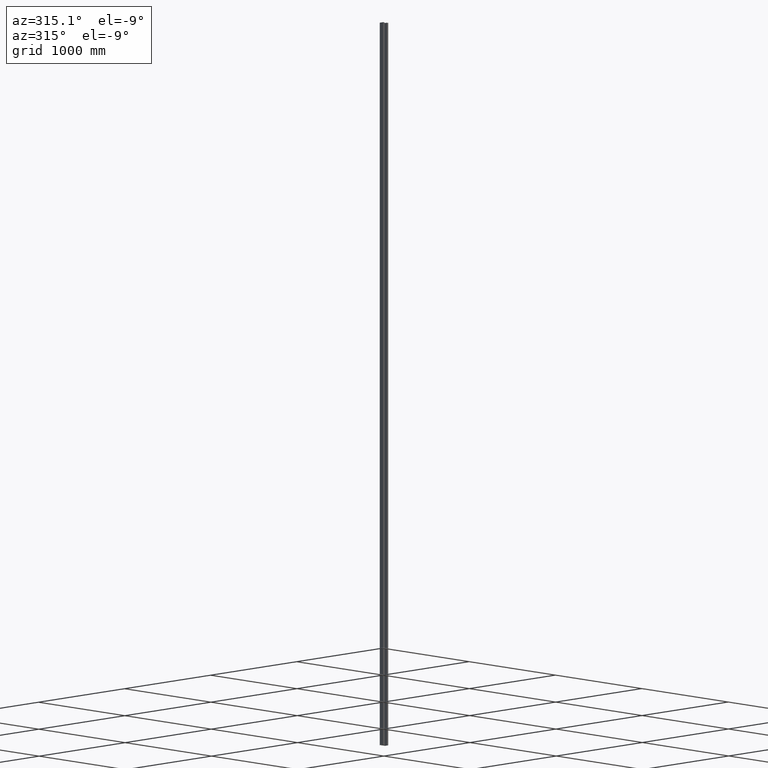
[diagram: clean part render]
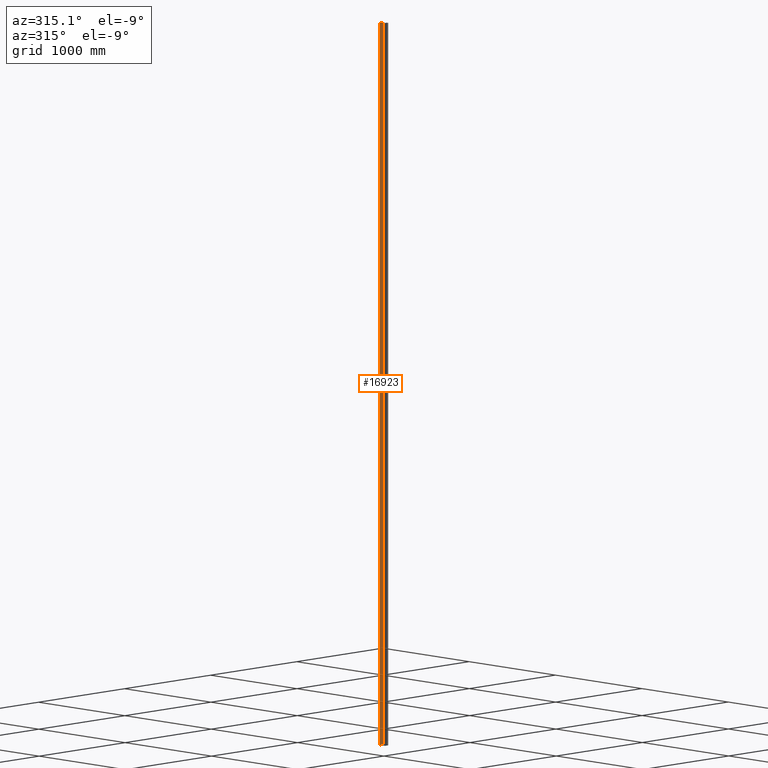
[diagram: same view with one face highlighted and labeled with its STEP entity id]
A machine part, auxiliary view. The second image highlights one B-rep face of the part: STEP entity #16923.
In plain terms, the highlighted planar face has unit normal (1, 0, -0).
Its self-contained STEP definition (entity closure, byte-faithful):
#56 = CARTESIAN_POINT ( 'NONE',  ( -30.00000000000000711, 17.99999999999999645, 3000.000000000000000 ) ) ;
#277 = DIRECTION ( 'NONE',  ( 9.637352644315595243E-17, -1.000000000000000000, 0.000000000000000000 ) ) ;
#302 = DIRECTION ( 'NONE',  ( -9.637352644315595243E-17, 1.000000000000000000, 0.000000000000000000 ) ) ;
#1171 = CARTESIAN_POINT ( 'NONE',  ( -30.00000000000001066, 17.99999999999999645, 3000.000000000000000 ) ) ;
#1354 = EDGE_LOOP ( 'NONE', ( #7096, #14882, #12290, #10972 ) ) ;
#1484 = CARTESIAN_POINT ( 'NONE',  ( -30.00000000000000711, 17.99999999999999645, -3000.000000000000000 ) ) ;
#2466 = CARTESIAN_POINT ( 'NONE',  ( -30.00000000000000711, -18.00000000000000355, -3000.000000000000000 ) ) ;
#2475 = CARTESIAN_POINT ( 'NONE',  ( -30.00000000000000711, -18.00000000000000355, 3000.000000000000000 ) ) ;
#2915 = VECTOR ( 'NONE', #9415, 1000.000000000000000 ) ;
#4629 = DIRECTION ( 'NONE',  ( -0.000000000000000000, -0.000000000000000000, -1.000000000000000000 ) ) ;
#5704 = VERTEX_POINT ( 'NONE', #2475 ) ;
#6095 = EDGE_CURVE ( 'NONE', #5704, #10466, #13427, .T. ) ;
#6396 = VERTEX_POINT ( 'NONE', #1484 ) ;
#6402 = LINE ( 'NONE', #8113, #2915 ) ;
#6473 = EDGE_CURVE ( 'NONE', #14292, #5704, #12164, .T. ) ;
#6899 = AXIS2_PLACEMENT_3D ( 'NONE', #1171, #15904, #302 ) ;
#7096 = ORIENTED_EDGE ( 'NONE', *, *, #8443, .T. ) ;
#8113 = CARTESIAN_POINT ( 'NONE',  ( -30.00000000000000711, 17.99999999999999645, 3000.000000000000000 ) ) ;
#8407 = DIRECTION ( 'NONE',  ( 9.637352644315595243E-17, -1.000000000000000000, 0.000000000000000000 ) ) ;
#8443 = EDGE_CURVE ( 'NONE', #6396, #10466, #13985, .T. ) ;
#8982 = PLANE ( 'NONE',  #6899 ) ;
#9415 = DIRECTION ( 'NONE',  ( -0.000000000000000000, -0.000000000000000000, -1.000000000000000000 ) ) ;
#9449 = CARTESIAN_POINT ( 'NONE',  ( -30.00000000000001066, 17.99999999999999645, -3000.000000000000000 ) ) ;
#9517 = VECTOR ( 'NONE', #4629, 1000.000000000000000 ) ;
#10288 = EDGE_CURVE ( 'NONE', #14292, #6396, #6402, .T. ) ;
#10466 = VERTEX_POINT ( 'NONE', #2466 ) ;
#10972 = ORIENTED_EDGE ( 'NONE', *, *, #10288, .T. ) ;
#11043 = FACE_OUTER_BOUND ( 'NONE', #1354, .T. ) ;
#11207 = CARTESIAN_POINT ( 'NONE',  ( -30.00000000000001066, 17.99999999999999645, 3000.000000000000000 ) ) ;
#12164 = LINE ( 'NONE', #11207, #16251 ) ;
#12290 = ORIENTED_EDGE ( 'NONE', *, *, #6473, .F. ) ;
#13427 = LINE ( 'NONE', #14967, #9517 ) ;
#13985 = LINE ( 'NONE', #9449, #14786 ) ;
#14292 = VERTEX_POINT ( 'NONE', #56 ) ;
#14786 = VECTOR ( 'NONE', #277, 1000.000000000000000 ) ;
#14882 = ORIENTED_EDGE ( 'NONE', *, *, #6095, .F. ) ;
#14967 = CARTESIAN_POINT ( 'NONE',  ( -30.00000000000000711, -18.00000000000000355, 3000.000000000000000 ) ) ;
#15904 = DIRECTION ( 'NONE',  ( 1.000000000000000000, 9.637352644315595243E-17, -0.000000000000000000 ) ) ;
#16251 = VECTOR ( 'NONE', #8407, 1000.000000000000000 ) ;
#16923 = ADVANCED_FACE ( 'NONE', ( #11043 ), #8982, .F. ) ;